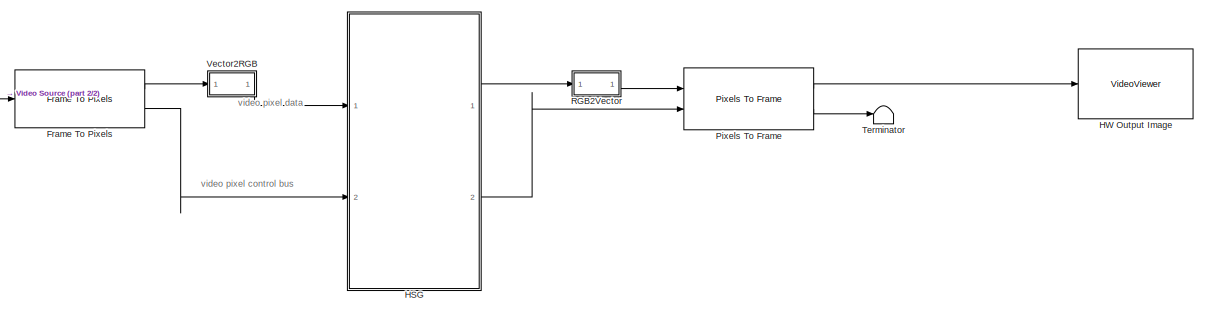
[diagram: root canvas - part 1/2, most of the canvas]
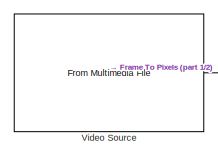
[diagram: root canvas - part 2/2, middle left region]
MODEL slx_bafc44b329ed
KIND model
CONFIG AbsTol = auto
CONFIG EnableMultiTasking = off
CONFIG FixedStep = auto
CONFIG InitFcn = Ts = 1e-3;\nTs_240p = 402*324*Ts;\n\n
CONFIG MaxStep = auto
CONFIG MinStep = auto
CONFIG RelTol = 1e-3
CONFIG SampleTimeConstraint = Unconstrained
CONFIG Solver = FixedStepDiscrete
CONFIG SolverName = FixedStepDiscrete
CONFIG StartTime = 0.0
CONFIG StopTime = Ts_240p
BLOCK [Reference] Frame To Pixels  REF=visionhdlio/Frame To Pixels
  Ports = [1, 2]
  SourceBlock = visionhdlio/Frame To Pixels
  SourceProductBaseCode = VT
  SourceProductName = Vision HDL Toolbox
  SourceType = Frame To Pixels
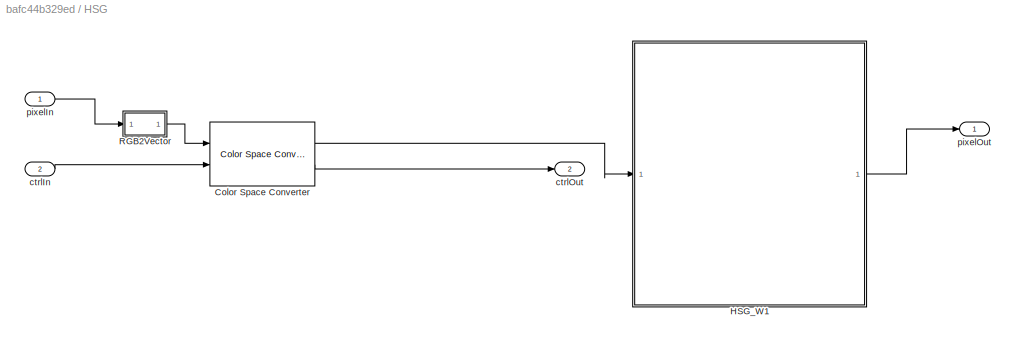
BLOCK [SubSystem] HSG
  Ports = [2, 2]
  RequestExecContextInheritance = off
  TreatAsAtomicUnit = on
  Variant = off
BLOCK [Reference] HSG/Color Space Converter  REF=visionhdlconversions/Color Space Converter
  Ports = [2, 2]
  SourceBlock = visionhdlconversions/Color Space Converter
  SourceProductBaseCode = VT
  SourceProductName = Vision HDL Toolbox
  SourceType = Color Space Converter
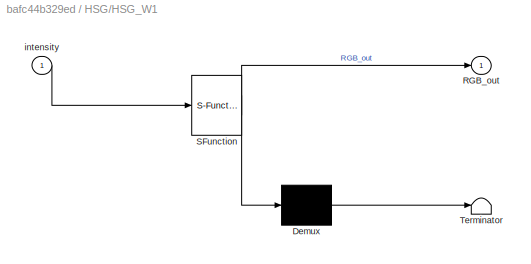
BLOCK [SubSystem] HSG/HSG_W1
  ErrorFcn = Stateflow.Translate.translate
  PermitHierarchicalResolution = ExplicitOnly
  Ports = [1, 1]
  RequestExecContextInheritance = off
  SFBlockType = MATLAB Function
  TreatAsAtomicUnit = on
  Variant = off
BLOCK [Demux] HSG/HSG_W1/ Demux 
  Outputs = 1
  Ports = [1, 1]
BLOCK [S-Function] HSG/HSG_W1/ SFunction 
  EnableBusSupport = on
  FunctionName = sf_sfun
  PortCounts = [1 2]
  Ports = [1, 2]
  SFcnIsStateOwnerBlock = off
  SFunctionDeploymentMode = off
  Tag = Stateflow S-Function Tutorial_1 2
BLOCK [Terminator] HSG/HSG_W1/ Terminator 
BLOCK [Outport] HSG/HSG_W1/RGB_out
  IconDisplay = Port number
BLOCK [Inport] HSG/HSG_W1/intensity
  IconDisplay = Port number
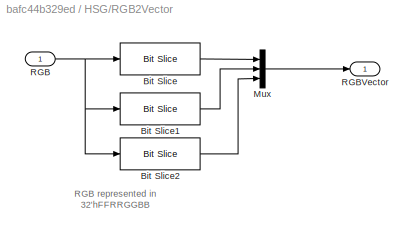
BLOCK [SubSystem] HSG/RGB2Vector
  Ports = [1, 1]
  RequestExecContextInheritance = off
  ShowPortLabels = none
  Variant = off
BLOCK [Reference] HSG/RGB2Vector/Bit Slice  REF=hdlsllib/Logic and Bit
Operations/Bit Slice
  Ports = [1, 1]
  SourceBlock = hdlsllib/Logic and Bit\nOperations/Bit Slice
  SourceProductBaseCode = HD
  SourceProductName = HDL Coder
  SourceType = Bit Slice
BLOCK [Reference] HSG/RGB2Vector/Bit Slice1  REF=hdlsllib/Logic and Bit
Operations/Bit Slice
  Ports = [1, 1]
  SourceBlock = hdlsllib/Logic and Bit\nOperations/Bit Slice
  SourceProductBaseCode = HD
  SourceProductName = HDL Coder
  SourceType = Bit Slice
BLOCK [Reference] HSG/RGB2Vector/Bit Slice2  REF=hdlsllib/Logic and Bit
Operations/Bit Slice
  Ports = [1, 1]
  SourceBlock = hdlsllib/Logic and Bit\nOperations/Bit Slice
  SourceProductBaseCode = HD
  SourceProductName = HDL Coder
  SourceType = Bit Slice
BLOCK [Mux] HSG/RGB2Vector/Mux
  DisplayOption = bar
  Inputs = 3
  Ports = [3, 1]
BLOCK [Inport] HSG/RGB2Vector/RGB
  IconDisplay = Port number
BLOCK [Outport] HSG/RGB2Vector/RGBVector
  IconDisplay = Port number
BLOCK [Inport] HSG/ctrlIn
  IconDisplay = Port number
  Port = 2
BLOCK [Outport] HSG/ctrlOut
  IconDisplay = Port number
  Port = 2
BLOCK [Inport] HSG/pixelIn
  IconDisplay = Port number
BLOCK [Outport] HSG/pixelOut
  IconDisplay = Port number
BLOCK [VideoViewer] HW Output Image
  FigPos = [21.8 576.4 730.4 446.4]
  Ports = [1]
  ScopeSpecificationString = vipscopes.VideoViewerScopeCfg('CurrentConfiguration', extmgr.ConfigurationSet(extmgr.Configuration('Core','General UI',true),extmgr.Configuration('Core','Source UI',true),extmgr.Configuration('Sources','WiredSimulink',true),extmgr.Configuration('Sources','Streaming',false),extmgr.Configuration('Sources','SimulinkEvent',false),extmgr.Configuration('Sources','Workspace',false),extmgr.Configuration('...<+1285ch>
  colormapValue = gray(256)
BLOCK [Reference] Pixels To Frame  REF=visionhdlio/Pixels To Frame
  Ports = [2, 2]
  SourceBlock = visionhdlio/Pixels To Frame
  SourceProductBaseCode = VT
  SourceProductName = Vision HDL Toolbox
  SourceType = Pixels To Frame
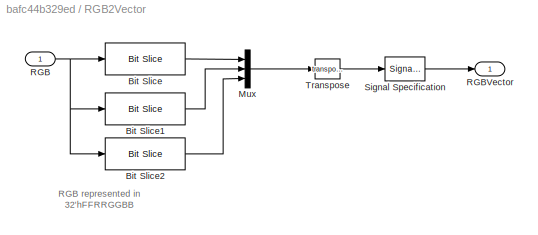
BLOCK [SubSystem] RGB2Vector
  Ports = [1, 1]
  RequestExecContextInheritance = off
  ShowPortLabels = none
  Variant = off
BLOCK [Reference] RGB2Vector/Bit Slice  REF=hdlsllib/Logic and Bit
Operations/Bit Slice
  Ports = [1, 1]
  SourceBlock = hdlsllib/Logic and Bit\nOperations/Bit Slice
  SourceProductBaseCode = HD
  SourceProductName = HDL Coder
  SourceType = Bit Slice
BLOCK [Reference] RGB2Vector/Bit Slice1  REF=hdlsllib/Logic and Bit
Operations/Bit Slice
  Ports = [1, 1]
  SourceBlock = hdlsllib/Logic and Bit\nOperations/Bit Slice
  SourceProductBaseCode = HD
  SourceProductName = HDL Coder
  SourceType = Bit Slice
BLOCK [Reference] RGB2Vector/Bit Slice2  REF=hdlsllib/Logic and Bit
Operations/Bit Slice
  Ports = [1, 1]
  SourceBlock = hdlsllib/Logic and Bit\nOperations/Bit Slice
  SourceProductBaseCode = HD
  SourceProductName = HDL Coder
  SourceType = Bit Slice
BLOCK [Mux] RGB2Vector/Mux
  DisplayOption = bar
  Inputs = 3
  Ports = [3, 1]
BLOCK [Inport] RGB2Vector/RGB
  IconDisplay = Port number
BLOCK [Outport] RGB2Vector/RGBVector
  IconDisplay = Port number
BLOCK [SignalSpecification] RGB2Vector/Signal Specification
  SignalType = real
BLOCK [Math] RGB2Vector/Transpose
  Operator = transpose
  Ports = [1, 1]
BLOCK [Terminator] Terminator
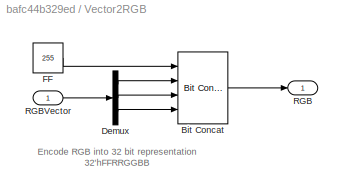
BLOCK [SubSystem] Vector2RGB
  Ports = [1, 1]
  RequestExecContextInheritance = off
  ShowPortLabels = none
  Variant = off
BLOCK [Reference] Vector2RGB/Bit Concat  REF=hdlsllib/Logic and Bit
Operations/Bit Concat
  Ports = [4, 1]
  SourceBlock = hdlsllib/Logic and Bit\nOperations/Bit Concat
  SourceProductBaseCode = HD
  SourceProductName = HDL Coder
  SourceType = Bit Concat
BLOCK [Demux] Vector2RGB/Demux
  DisplayOption = bar
  Outputs = 3
  Ports = [1, 3]
BLOCK [Constant] Vector2RGB/FF
  OutDataTypeStr = uint8
  SampleTime = Ts
  Value = 255
BLOCK [Outport] Vector2RGB/RGB
  IconDisplay = Port number
BLOCK [Inport] Vector2RGB/RGBVector
  IconDisplay = Port number
BLOCK [Reference] Video Source  REF=dspvision/From Multimedia File
  Ports = [0, 1]
  SourceBlock = dspvision/From Multimedia File
  SourceProductBaseCode = VP
  SourceProductName = Computer Vision System Toolbox
  SourceType = From Multimedia File
ANNOTATION (root): video pixel control bus
ANNOTATION (root): video pixel data
ANNOTATION HSG/RGB2Vector: RGB represented in 32'hFFRRGGBB
ANNOTATION RGB2Vector: RGB represented in 32'hFFRRGGBB
ANNOTATION Vector2RGB: Encode RGB into 32 bit representation 32'hFFRRGGBB
LINE Frame To Pixels:1 -> Vector2RGB:1
LINE Frame To Pixels:2 -> HSG:2
LINE HSG/Color Space Converter:1 -> HSG/HSG_W1:1
LINE HSG/Color Space Converter:2 -> HSG/ctrlOut:1
LINE HSG/HSG_W1:1 -> HSG/pixelOut:1
LINE HSG/RGB2Vector/Bit Slice1:1 -> HSG/RGB2Vector/Mux:2
LINE HSG/RGB2Vector/Bit Slice2:1 -> HSG/RGB2Vector/Mux:3
LINE HSG/RGB2Vector/Bit Slice:1 -> HSG/RGB2Vector/Mux:1
LINE HSG/RGB2Vector/Mux:1 -> HSG/RGB2Vector/RGBVector:1
NET HSG/RGB2Vector/RGB:1 -> HSG/RGB2Vector/Bit Slice1:1, HSG/RGB2Vector/Bit Slice2:1, HSG/RGB2Vector/Bit Slice:1
LINE HSG/RGB2Vector:1 -> HSG/Color Space Converter:1
LINE HSG/ctrlIn:1 -> HSG/Color Space Converter:2
LINE HSG/pixelIn:1 -> HSG/RGB2Vector:1
LINE HSG:1 -> RGB2Vector:1
LINE HSG:2 -> Pixels To Frame:2
LINE Pixels To Frame:1 -> HW Output Image:1
LINE Pixels To Frame:2 -> Terminator:1
LINE RGB2Vector/Bit Slice1:1 -> RGB2Vector/Mux:2
LINE RGB2Vector/Bit Slice2:1 -> RGB2Vector/Mux:3
LINE RGB2Vector/Bit Slice:1 -> RGB2Vector/Mux:1
LINE RGB2Vector/Mux:1 -> RGB2Vector/Transpose:1
NET RGB2Vector/RGB:1 -> RGB2Vector/Bit Slice1:1, RGB2Vector/Bit Slice2:1, RGB2Vector/Bit Slice:1
LINE RGB2Vector/Signal Specification:1 -> RGB2Vector/RGBVector:1
LINE RGB2Vector/Transpose:1 -> RGB2Vector/Signal Specification:1
LINE RGB2Vector:1 -> Pixels To Frame:1
LINE Vector2RGB/Bit Concat:1 -> Vector2RGB/RGB:1
LINE Vector2RGB/Demux:1 -> Vector2RGB/Bit Concat:2
LINE Vector2RGB/Demux:2 -> Vector2RGB/Bit Concat:3
LINE Vector2RGB/Demux:3 -> Vector2RGB/Bit Concat:4
LINE Vector2RGB/FF:1 -> Vector2RGB/Bit Concat:1
LINE Vector2RGB/RGBVector:1 -> Vector2RGB/Demux:1
LINE Vector2RGB:1 -> HSG:1
LINE Video Source:1 -> Frame To Pixels:1
note: NET lines group one-source signal fan-out (src -> all destinations, sorted); 1:1 wires keep LINE
CHART HSG/HSG_W1 states=1 transitions=1
  STATE_LABEL 'eML_blk_kernel()'
  STATE_LABEL 'SCRIPT:\nfunction RGB_out  = HSG_W1(intensity)\n\nin_d = double(intensity);%Double precision format\n\nR = fi(in_d, 0, 8, 0);%convert to fixed-point 8-bit signal\nG = fi(in_d, 0, 8, 0);\nB = fi(in_d, 0, 8, 0);\nA = fi(255, 0, 8, 0);\n\nRGB_out = bitconcat(A,R,G,B);%32-bit output signal\n'
